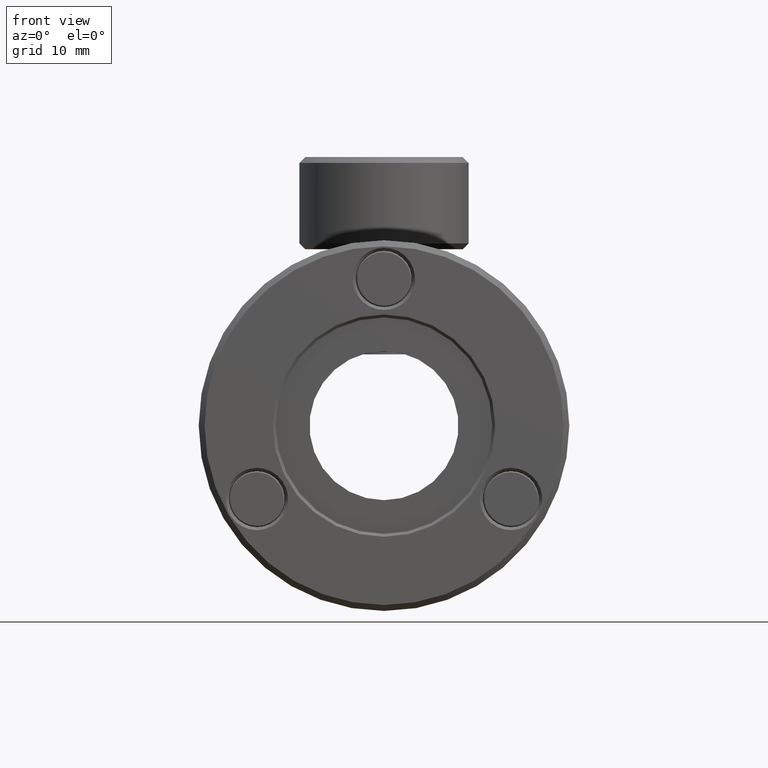
[diagram: clean part render]
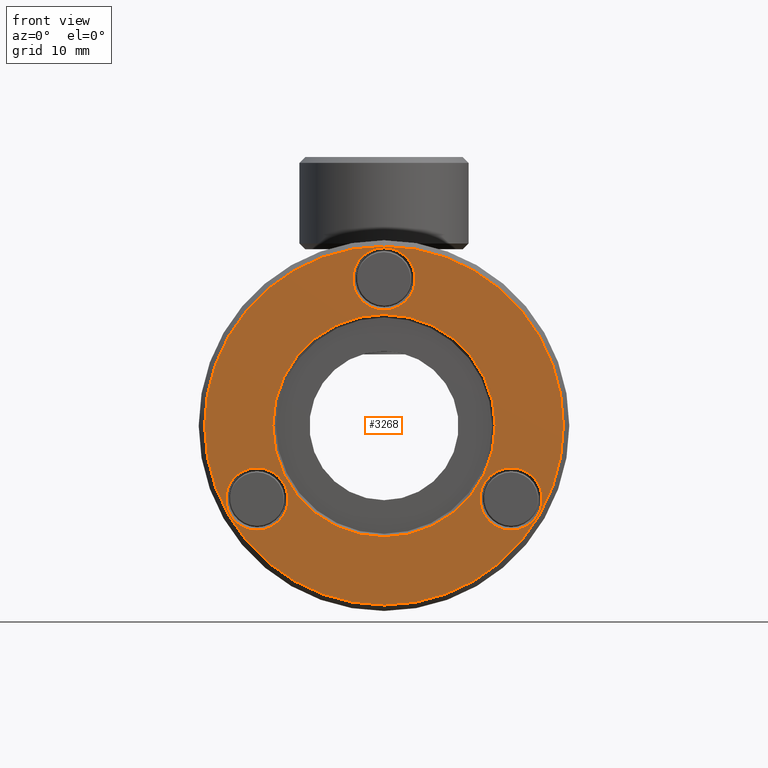
[diagram: same view with one face highlighted and labeled with its STEP entity id]
A machine part, front view. The second image highlights one B-rep face of the part: STEP entity #3268.
In plain terms, the highlighted planar face has unit normal (0, -1, -0).
Its self-contained STEP definition (entity closure, byte-faithful):
#76 = CARTESIAN_POINT ( 'NONE',  ( -16.77690416192945100, -19.54783156452665300, 27.08596359904498400 ) ) ;
#91 = FACE_BOUND ( 'NONE', #2977, .T. ) ;
#134 = CARTESIAN_POINT ( 'NONE',  ( -16.77690416192945100, -19.54783156452665300, 11.84596359904499100 ) ) ;
#186 = DIRECTION ( 'NONE',  ( 0.0000000000000000000, 0.0000000000000000000, -1.000000000000000000 ) ) ;
#248 = ORIENTED_EDGE ( 'NONE', *, *, #2279, .F. ) ;
#267 = VERTEX_POINT ( 'NONE', #1303 ) ;
#273 = ORIENTED_EDGE ( 'NONE', *, *, #1478, .T. ) ;
#306 = EDGE_CURVE ( 'NONE', #2992, #1890, #901, .T. ) ;
#345 = CIRCLE ( 'NONE', #2189, 9.525000000000000400 ) ;
#386 = CARTESIAN_POINT ( 'NONE',  ( -16.77690416192945100, -19.54783156452665300, 27.21296359904499000 ) ) ;
#394 = AXIS2_PLACEMENT_3D ( 'NONE', #3334, #573, #2245 ) ;
#407 = DIRECTION ( 'NONE',  ( -0.0000000000000000000, -1.000000000000000000, -0.0000000000000000000 ) ) ;
#444 = ORIENTED_EDGE ( 'NONE', *, *, #1900, .T. ) ;
#461 = EDGE_CURVE ( 'NONE', #462, #1531, #2167, .T. ) ;
#462 = VERTEX_POINT ( 'NONE', #2746 ) ;
#496 = DIRECTION ( 'NONE',  ( 0.0000000000000000000, 1.000000000000000000, 0.0000000000000000000 ) ) ;
#573 = DIRECTION ( 'NONE',  ( 0.0000000000000000000, 1.000000000000000000, 0.0000000000000000000 ) ) ;
#642 = EDGE_CURVE ( 'NONE', #1874, #1293, #2058, .T. ) ;
#722 = DIRECTION ( 'NONE',  ( 0.0000000000000000000, 1.000000000000000000, 0.0000000000000000000 ) ) ;
#736 = CARTESIAN_POINT ( 'NONE',  ( -16.77690416192945100, -19.54783156452665300, 24.41896359904498900 ) ) ;
#765 = EDGE_CURVE ( 'NONE', #1047, #1676, #3121, .T. ) ;
#774 = AXIS2_PLACEMENT_3D ( 'NONE', #1936, #3555, #1922 ) ;
#845 = AXIS2_PLACEMENT_3D ( 'NONE', #2666, #722, #2119 ) ;
#901 = CIRCLE ( 'NONE', #2993, 2.666999999999995800 ) ;
#903 = FACE_BOUND ( 'NONE', #1515, .T. ) ;
#954 = EDGE_LOOP ( 'NONE', ( #273, #2376 ) ) ;
#1047 = VERTEX_POINT ( 'NONE', #386 ) ;
#1061 = DIRECTION ( 'NONE',  ( 0.0000000000000000000, 0.0000000000000000000, -1.000000000000000000 ) ) ;
#1065 = AXIS2_PLACEMENT_3D ( 'NONE', #134, #407, #2343 ) ;
#1066 = EDGE_CURVE ( 'NONE', #1293, #1874, #1748, .T. ) ;
#1222 = DIRECTION ( 'NONE',  ( 0.0000000000000000000, 0.0000000000000000000, -1.000000000000000000 ) ) ;
#1237 = CARTESIAN_POINT ( 'NONE',  ( -27.66544156371120900, -19.54783156452665300, 5.559463599045014500 ) ) ;
#1293 = VERTEX_POINT ( 'NONE', #3117 ) ;
#1303 = CARTESIAN_POINT ( 'NONE',  ( -16.77690416192945100, -19.54783156452665300, 2.320963599044987700 ) ) ;
#1341 = CARTESIAN_POINT ( 'NONE',  ( -5.888366760147686600, -19.54783156452665300, 5.559463599045020700 ) ) ;
#1384 = DIRECTION ( 'NONE',  ( -0.0000000000000000000, -1.000000000000000000, -0.0000000000000000000 ) ) ;
#1397 = DIRECTION ( 'NONE',  ( 0.0000000000000000000, 0.0000000000000000000, -1.000000000000000000 ) ) ;
#1412 = ORIENTED_EDGE ( 'NONE', *, *, #461, .T. ) ;
#1478 = EDGE_CURVE ( 'NONE', #1890, #2992, #2910, .T. ) ;
#1515 = EDGE_LOOP ( 'NONE', ( #2269, #248 ) ) ;
#1531 = VERTEX_POINT ( 'NONE', #2871 ) ;
#1567 = EDGE_CURVE ( 'NONE', #1676, #1047, #1782, .T. ) ;
#1602 = CARTESIAN_POINT ( 'NONE',  ( -27.66544156371120900, -19.54783156452665300, 2.892463599045008500 ) ) ;
#1616 = PLANE ( 'NONE',  #3098 ) ;
#1657 = ORIENTED_EDGE ( 'NONE', *, *, #765, .T. ) ;
#1676 = VERTEX_POINT ( 'NONE', #2192 ) ;
#1685 = AXIS2_PLACEMENT_3D ( 'NONE', #2019, #2281, #1999 ) ;
#1688 = DIRECTION ( 'NONE',  ( 0.0000000000000000000, -1.000000000000000000, -0.0000000000000000000 ) ) ;
#1748 = CIRCLE ( 'NONE', #845, 2.667000000000006900 ) ;
#1782 = CIRCLE ( 'NONE', #2079, 15.36700000000000100 ) ;
#1814 = CIRCLE ( 'NONE', #1065, 9.525000000000000400 ) ;
#1850 = AXIS2_PLACEMENT_3D ( 'NONE', #1341, #496, #3233 ) ;
#1862 = DIRECTION ( 'NONE',  ( 0.0000000000000000000, 1.000000000000000000, 0.0000000000000000000 ) ) ;
#1874 = VERTEX_POINT ( 'NONE', #1602 ) ;
#1890 = VERTEX_POINT ( 'NONE', #1904 ) ;
#1900 = EDGE_CURVE ( 'NONE', #1531, #462, #3022, .T. ) ;
#1904 = CARTESIAN_POINT ( 'NONE',  ( -16.77690416192945100, -19.54783156452665300, 21.75196359904499500 ) ) ;
#1914 = CARTESIAN_POINT ( 'NONE',  ( -16.77690416192945100, -19.54783156452665300, 11.84596359904499100 ) ) ;
#1922 = DIRECTION ( 'NONE',  ( 0.0000000000000000000, 0.0000000000000000000, -1.000000000000000000 ) ) ;
#1936 = CARTESIAN_POINT ( 'NONE',  ( -5.888366760147686600, -19.54783156452665300, 5.559463599045020700 ) ) ;
#1999 = DIRECTION ( 'NONE',  ( 0.0000000000000000000, 0.0000000000000000000, -1.000000000000000000 ) ) ;
#2019 = CARTESIAN_POINT ( 'NONE',  ( -16.77690416192945100, -19.54783156452665300, 11.84596359904499100 ) ) ;
#2045 = VERTEX_POINT ( 'NONE', #2233 ) ;
#2058 = CIRCLE ( 'NONE', #2338, 2.667000000000006900 ) ;
#2079 = AXIS2_PLACEMENT_3D ( 'NONE', #1914, #1384, #1397 ) ;
#2119 = DIRECTION ( 'NONE',  ( 0.0000000000000000000, 0.0000000000000000000, -1.000000000000000000 ) ) ;
#2167 = CIRCLE ( 'NONE', #774, 2.667000000000006000 ) ;
#2189 = AXIS2_PLACEMENT_3D ( 'NONE', #3143, #2861, #2578 ) ;
#2192 = CARTESIAN_POINT ( 'NONE',  ( -16.77690416192944800, -19.54783156452665300, -3.521036400955010600 ) ) ;
#2209 = FACE_OUTER_BOUND ( 'NONE', #3291, .T. ) ;
#2233 = CARTESIAN_POINT ( 'NONE',  ( -16.77690416192945100, -19.54783156452665300, 21.37096359904498800 ) ) ;
#2245 = DIRECTION ( 'NONE',  ( 0.0000000000000000000, 0.0000000000000000000, -1.000000000000000000 ) ) ;
#2269 = ORIENTED_EDGE ( 'NONE', *, *, #3490, .F. ) ;
#2279 = EDGE_CURVE ( 'NONE', #2045, #267, #1814, .T. ) ;
#2281 = DIRECTION ( 'NONE',  ( -0.0000000000000000000, -1.000000000000000000, -0.0000000000000000000 ) ) ;
#2298 = DIRECTION ( 'NONE',  ( 0.0000000000000000000, 1.000000000000000000, 0.0000000000000000000 ) ) ;
#2338 = AXIS2_PLACEMENT_3D ( 'NONE', #1237, #2298, #1222 ) ;
#2343 = DIRECTION ( 'NONE',  ( 0.0000000000000000000, 0.0000000000000000000, -1.000000000000000000 ) ) ;
#2376 = ORIENTED_EDGE ( 'NONE', *, *, #306, .T. ) ;
#2398 = ORIENTED_EDGE ( 'NONE', *, *, #642, .T. ) ;
#2459 = EDGE_LOOP ( 'NONE', ( #1412, #444 ) ) ;
#2578 = DIRECTION ( 'NONE',  ( 0.0000000000000000000, 0.0000000000000000000, -1.000000000000000000 ) ) ;
#2666 = CARTESIAN_POINT ( 'NONE',  ( -27.66544156371120900, -19.54783156452665300, 5.559463599045014500 ) ) ;
#2746 = CARTESIAN_POINT ( 'NONE',  ( -5.888366760147686600, -19.54783156452665300, 2.892463599045016500 ) ) ;
#2839 = FACE_BOUND ( 'NONE', #2459, .T. ) ;
#2861 = DIRECTION ( 'NONE',  ( -0.0000000000000000000, -1.000000000000000000, -0.0000000000000000000 ) ) ;
#2871 = CARTESIAN_POINT ( 'NONE',  ( -5.888366760147686600, -19.54783156452665300, 8.226463599045025900 ) ) ;
#2910 = CIRCLE ( 'NONE', #394, 2.666999999999995800 ) ;
#2977 = EDGE_LOOP ( 'NONE', ( #2398, #3340 ) ) ;
#2992 = VERTEX_POINT ( 'NONE', #76 ) ;
#2993 = AXIS2_PLACEMENT_3D ( 'NONE', #736, #1862, #186 ) ;
#3022 = CIRCLE ( 'NONE', #1850, 2.667000000000006000 ) ;
#3025 = CARTESIAN_POINT ( 'NONE',  ( -7.251904161929450900, -19.54783156452665300, 11.84596359904499100 ) ) ;
#3049 = ORIENTED_EDGE ( 'NONE', *, *, #1567, .T. ) ;
#3098 = AXIS2_PLACEMENT_3D ( 'NONE', #3025, #1688, #1061 ) ;
#3117 = CARTESIAN_POINT ( 'NONE',  ( -27.66544156371120900, -19.54783156452665300, 8.226463599045020600 ) ) ;
#3121 = CIRCLE ( 'NONE', #1685, 15.36700000000000100 ) ;
#3143 = CARTESIAN_POINT ( 'NONE',  ( -16.77690416192945100, -19.54783156452665300, 11.84596359904499100 ) ) ;
#3209 = FACE_BOUND ( 'NONE', #954, .T. ) ;
#3233 = DIRECTION ( 'NONE',  ( 0.0000000000000000000, 0.0000000000000000000, -1.000000000000000000 ) ) ;
#3268 = ADVANCED_FACE ( 'NONE', ( #2839, #3209, #91, #2209, #903 ), #1616, .T. ) ;
#3291 = EDGE_LOOP ( 'NONE', ( #1657, #3049 ) ) ;
#3334 = CARTESIAN_POINT ( 'NONE',  ( -16.77690416192945100, -19.54783156452665300, 24.41896359904498900 ) ) ;
#3340 = ORIENTED_EDGE ( 'NONE', *, *, #1066, .T. ) ;
#3490 = EDGE_CURVE ( 'NONE', #267, #2045, #345, .T. ) ;
#3555 = DIRECTION ( 'NONE',  ( 0.0000000000000000000, 1.000000000000000000, 0.0000000000000000000 ) ) ;